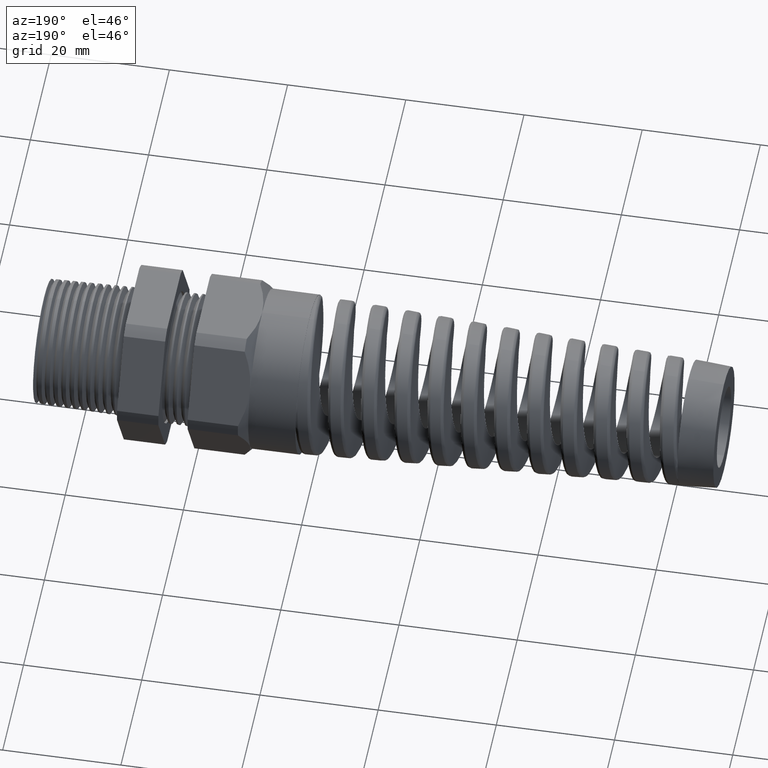
[diagram: clean part render]
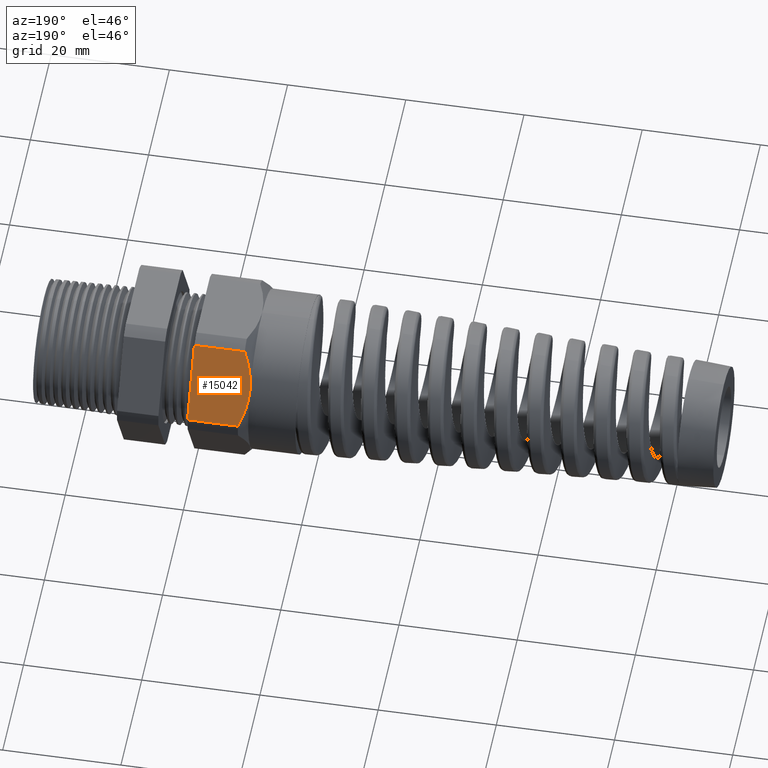
[diagram: same view with one face highlighted and labeled with its STEP entity id]
A machine part, auxiliary view. The second image highlights one B-rep face of the part: STEP entity #15042.
In plain terms, the highlighted planar face has unit normal (0, 0.866, 0.5).
Its self-contained STEP definition (entity closure, byte-faithful):
#9025 = CARTESIAN_POINT ( 'NONE',  ( -1.173779527559055200, 0.4589934640057526900, 0.2650000000000001200 ) ) ;
#11707 = DIRECTION ( 'NONE',  ( 0.0000000000000000000, -0.5000000000000000000, 0.8660254037844386000 ) ) ;
#11708 = VECTOR ( 'NONE', #11707, 39.37007874015748100 ) ;
#11709 = CARTESIAN_POINT ( 'NONE',  ( -0.7800787401574802400, 0.5689934640057525700, 0.07447441116742357900 ) ) ;
#11710 = LINE ( 'NONE', #11709, #11708 ) ;
#11720 = CARTESIAN_POINT ( 'NONE',  ( -1.162954343050061500, 0.5138045271803672900, 0.1700644537646998900 ) ) ;
#11721 = CARTESIAN_POINT ( 'NONE',  ( -1.147681728858640700, 0.5456613404998794700, 0.1148868345280679900 ) ) ;
#11722 = CARTESIAN_POINT ( 'NONE',  ( -1.133109412416612600, 0.5663521078376417800, 0.07904937425147712200 ) ) ;
#11723 = CARTESIAN_POINT ( 'NONE',  ( -1.115479527559055400, 0.5866618723924791300, 0.04387183015273709400 ) ) ;
#11724 = B_SPLINE_CURVE_WITH_KNOTS ( 'NONE', 3,
 ( #11723, #11722, #11721, #11720, #11775, #11774, #11773, #11772, #11771, #11770 ),
 .UNSPECIFIED., .F., .F.,
 ( 4, 2, 2, 2, 4 ),
 ( 2.483250567291773800E-007, 0.003328456037203368000, 0.004992559893276685800, 0.005824611821313345000, 0.006656663749350004100 ),
 .UNSPECIFIED. ) ;
#11725 = CARTESIAN_POINT ( 'NONE',  ( -1.115479527559055400, 0.5866618723924791300, 0.04387183015273709400 ) ) ;
#11726 = CARTESIAN_POINT ( 'NONE',  ( -0.7800787401574802400, 0.5866618723924791300, 0.04387183015273709400 ) ) ;
#11727 = DIRECTION ( 'NONE',  ( -1.000000000000000000, 0.0000000000000000000, 0.0000000000000000000 ) ) ;
#11728 = VECTOR ( 'NONE', #11727, 39.37007874015748100 ) ;
#11729 = CARTESIAN_POINT ( 'NONE',  ( 0.2800000000000000300, 0.5866618723924791300, 0.04387183015273709400 ) ) ;
#11730 = LINE ( 'NONE', #11729, #11728 ) ;
#11731 = DIRECTION ( 'NONE',  ( 0.0000000000000000000, -0.5000000000000000000, 0.8660254037844386000 ) ) ;
#11732 = DIRECTION ( 'NONE',  ( 0.0000000000000000000, 0.8660254037844387100, 0.5000000000000001100 ) ) ;
#11733 = CARTESIAN_POINT ( 'NONE',  ( 0.2800000000000000300, 0.3313250556190260900, 0.4861281698472629300 ) ) ;
#11734 = AXIS2_PLACEMENT_3D ( 'NONE', #11733, #11732, #11731 ) ;
#11735 = PLANE ( 'NONE',  #11734 ) ;
#11736 = FACE_OUTER_BOUND ( 'NONE', #15043, .T. ) ;
#11764 = CARTESIAN_POINT ( 'NONE',  ( -1.115479527559055200, 0.3313250556190261400, 0.4861281698472628700 ) ) ;
#11765 = CARTESIAN_POINT ( 'NONE',  ( -1.133131244554131100, 0.3516599709661862300, 0.4509070632983697100 ) ) ;
#11766 = CARTESIAN_POINT ( 'NONE',  ( -1.147909079623190800, 0.3726775389205837000, 0.4145035677498214400 ) ) ;
#11767 = CARTESIAN_POINT ( 'NONE',  ( -1.168202496647472000, 0.4152540171503038000, 0.3407589442485963200 ) ) ;
#11768 = CARTESIAN_POINT ( 'NONE',  ( -1.173779527559054800, 0.4369033769668389500, 0.3032611530950170000 ) ) ;
#11769 = CARTESIAN_POINT ( 'NONE',  ( -1.173779527559055200, 0.4589934640057526900, 0.2650000000000001200 ) ) ;
#11770 = CARTESIAN_POINT ( 'NONE',  ( -1.173779527559055200, 0.4589934640057526900, 0.2650000000000001200 ) ) ;
#11771 = CARTESIAN_POINT ( 'NONE',  ( -1.173779527559055200, 0.4645197752363699500, 0.2554281481701324300 ) ) ;
#11772 = CARTESIAN_POINT ( 'NONE',  ( -1.173429801073962100, 0.4700966316160715700, 0.2457687495739746800 ) ) ;
#11773 = CARTESIAN_POINT ( 'NONE',  ( -1.172040755203298300, 0.4811768528785425600, 0.2265772433882700700 ) ) ;
#11774 = CARTESIAN_POINT ( 'NONE',  ( -1.171005978562913400, 0.4866745645865461800, 0.2170549273846413000 ) ) ;
#11775 = CARTESIAN_POINT ( 'NONE',  ( -1.166942497515101500, 0.5030481801450603600, 0.1886949933336942200 ) ) ;
#11776 = B_SPLINE_CURVE_WITH_KNOTS ( 'NONE', 3,
 ( #11769, #11768, #11767, #11766, #11765, #11764 ),
 .UNSPECIFIED., .F., .F.,
 ( 4, 2, 4 ),
 ( 0.006656663749350004100, 0.009982589261723353100, 0.01330851477409670200 ),
 .UNSPECIFIED. ) ;
#12868 = EDGE_CURVE ( 'NONE', #12873, #12877, #18750, .T. ) ;
#12873 = VERTEX_POINT ( 'NONE', #18735 ) ;
#12877 = VERTEX_POINT ( 'NONE', #18728 ) ;
#13933 = VERTEX_POINT ( 'NONE', #9025 ) ;
#15026 = ORIENTED_EDGE ( 'NONE', *, *, #15027, .F. ) ;
#15027 = EDGE_CURVE ( 'NONE', #15046, #12873, #11710, .T. ) ;
#15042 = ADVANCED_FACE ( 'NONE', ( #11736 ), #11735, .T. ) ;
#15043 = EDGE_LOOP ( 'NONE', ( #15044, #15048, #15050, #15052, #15026 ) ) ;
#15044 = ORIENTED_EDGE ( 'NONE', *, *, #15045, .T. ) ;
#15045 = EDGE_CURVE ( 'NONE', #15046, #15047, #11730, .T. ) ;
#15046 = VERTEX_POINT ( 'NONE', #11726 ) ;
#15047 = VERTEX_POINT ( 'NONE', #11725 ) ;
#15048 = ORIENTED_EDGE ( 'NONE', *, *, #15049, .T. ) ;
#15049 = EDGE_CURVE ( 'NONE', #15047, #13933, #11724, .T. ) ;
#15050 = ORIENTED_EDGE ( 'NONE', *, *, #15051, .T. ) ;
#15051 = EDGE_CURVE ( 'NONE', #13933, #12877, #11776, .T. ) ;
#15052 = ORIENTED_EDGE ( 'NONE', *, *, #12868, .F. ) ;
#18728 = CARTESIAN_POINT ( 'NONE',  ( -1.115479527559055200, 0.3313250556190261400, 0.4861281698472628700 ) ) ;
#18735 = CARTESIAN_POINT ( 'NONE',  ( -0.7800787401574802400, 0.3313250556190260900, 0.4861281698472628700 ) ) ;
#18747 = DIRECTION ( 'NONE',  ( -1.000000000000000000, 0.0000000000000000000, 0.0000000000000000000 ) ) ;
#18748 = VECTOR ( 'NONE', #18747, 39.37007874015748100 ) ;
#18749 = CARTESIAN_POINT ( 'NONE',  ( 0.2800000000000000300, 0.3313250556190260900, 0.4861281698472628700 ) ) ;
#18750 = LINE ( 'NONE', #18749, #18748 ) ;